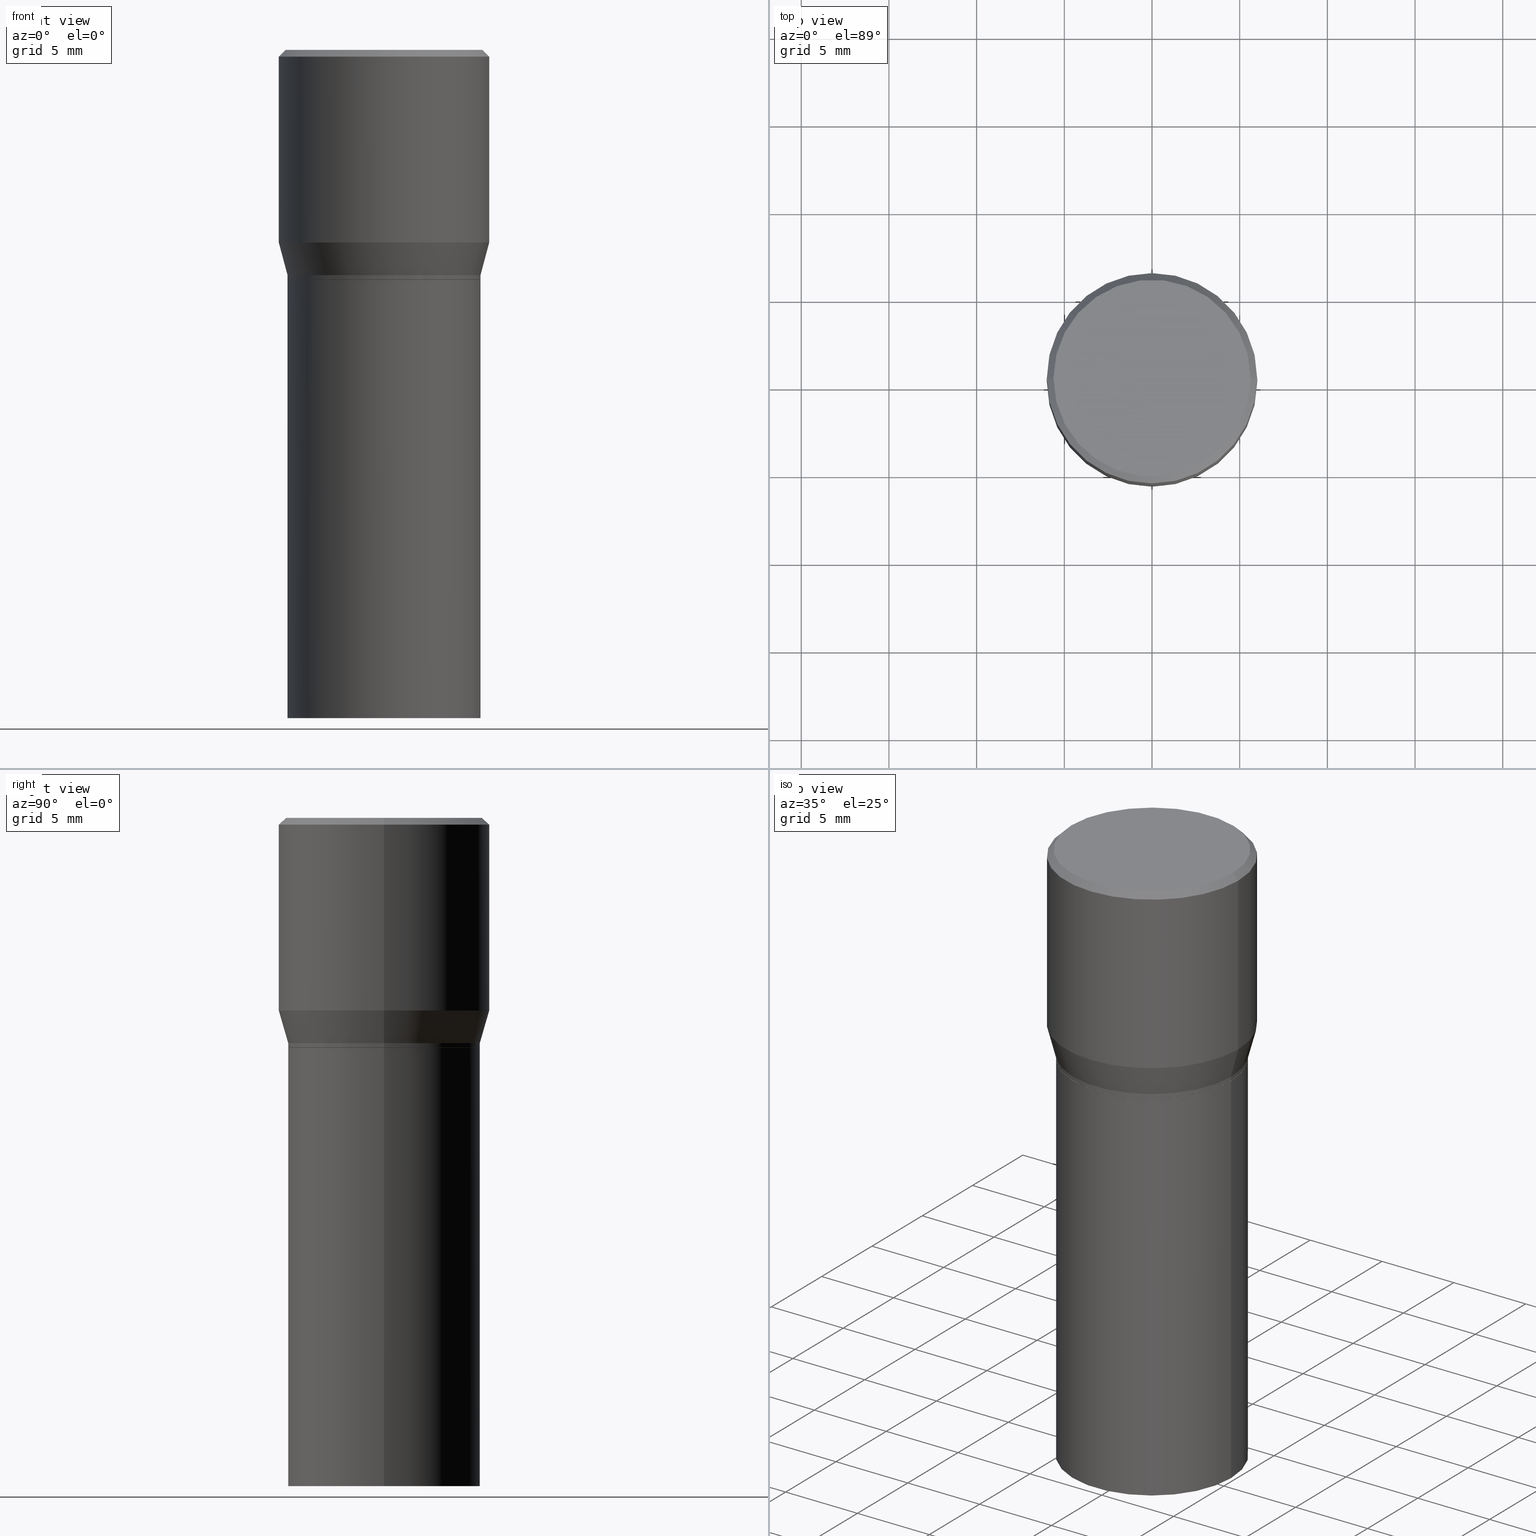
[diagram: canonical four-view strip — front | top / right | iso, engineering-drawing reading convention]
A machine part, canonical four-view strip (front | top / right | iso — engineering-drawing reading convention). The complete STEP part file that produces these views, byte-faithful:
ISO-10303-21;
HEADER;
FILE_DESCRIPTION (( 'STEP AP203' ),
    '1' );
FILE_NAME ('48642.STEP',
    '2024-03-12T19:37:21',
    ( '' ),
    ( '' ),
    'SwSTEP 2.0',
    'SolidWorks 2023',
    '' );
FILE_SCHEMA (( 'CONFIG_CONTROL_DESIGN' ));
ENDSEC;

DATA;
#1 = EDGE_CURVE ( 'NONE', #222, #376, #321, .T. ) ;
#2 = CARTESIAN_POINT ( 'NONE',  ( 1.236673575287824021E-29, -1.765642113052979313E-15, -0.5057000000000001494 ) ) ;
#3 = PERSON_AND_ORGANIZATION_ROLE ( 'creator' ) ;
#4 = DIRECTION ( 'NONE',  ( 1.000000000000000000, -6.982962677686267499E-15, 0.000000000000000000 ) ) ;
#5 = APPROVAL_ROLE ( '' ) ;
#6 = DIRECTION ( 'NONE',  ( 0.000000000000000000, 0.000000000000000000, 1.000000000000000000 ) ) ;
#7 = CONICAL_SURFACE ( 'NONE', #185, 0.2160500000000000198, 0.7853981633974824739 ) ;
#8 = ADVANCED_FACE ( 'NONE', ( #336 ), #456, .F. ) ;
#9 = DATE_AND_TIME ( #327, #351 ) ;
#10 = APPLICATION_CONTEXT ( 'configuration controlled 3d designs of mechanical parts and assemblies' ) ;
#11 = CARTESIAN_POINT ( 'NONE',  ( -0.2361999999999999933, 1.678301941865356591E-15, -1.161852468318208757E-29 ) ) ;
#12 = CIRCLE ( 'NONE', #280, 0.2361999999999999933 ) ;
#13 = CARTESIAN_POINT ( 'NONE',  ( 0.000000000000000000, 0.000000000000000000, 0.000000000000000000 ) ) ;
#14 = PERSON_AND_ORGANIZATION_ROLE ( 'design_owner' ) ;
#15 = DIRECTION ( 'NONE',  ( 1.000000000000000000, -6.982962677686268288E-15, 0.000000000000000000 ) ) ;
#16 = APPROVAL ( #409, 'UNSPECIFIED' ) ;
#17 = EDGE_LOOP ( 'NONE', ( #418, #430, #248, #424 ) ) ;
#18 = CARTESIAN_POINT ( 'NONE',  ( 0.000000000000000000, 0.000000000000000000, 0.000000000000000000 ) ) ;
#19 = PERSON_AND_ORGANIZATION_ROLE ( 'design_supplier' ) ;
#20 = ADVANCED_FACE ( 'NONE', ( #141 ), #213, .T. ) ;
#21 = CALENDAR_DATE ( 2024, 12, 3 ) ;
#22 = LINE ( 'NONE', #124, #61 ) ;
#23 = CLOSED_SHELL ( 'NONE', ( #449, #114, #429, #74 ) ) ;
#24 = CIRCLE ( 'NONE', #228, 0.2212000000000000077 ) ;
#25 = LINE ( 'NONE', #410, #366 ) ;
#26 = AXIS2_PLACEMENT_3D ( 'NONE', #392, #107, #385 ) ;
#27 = LOCAL_TIME ( 15, 37, 21.00000000000000000, #278 ) ;
#28 = PRODUCT_RELATED_PRODUCT_CATEGORY ( 'detail', '', ( #354 ) ) ;
#29 = ORIENTED_EDGE ( 'NONE', *, *, #118, .T. ) ;
#30 = DIRECTION ( 'NONE',  ( -2.438088387897960049E-29, 3.491481338843145188E-15, 1.000000000000000000 ) ) ;
#31 = DIRECTION ( 'NONE',  ( 2.438088387897960049E-29, -3.491481338843145188E-15, -1.000000000000000000 ) ) ;
#32 = CONICAL_SURFACE ( 'NONE', #77, 0.2361999999999999933, 0.7853981633974459475 ) ;
#33 = DIRECTION ( 'NONE',  ( -2.445468806185136597E-29, 3.491481338843145583E-15, 1.000000000000000000 ) ) ;
#34 = EDGE_CURVE ( 'NONE', #376, #209, #140, .T. ) ;
#35 = DIMENSIONAL_EXPONENTS ( 1.000000000000000000, 0.000000000000000000, 0.000000000000000000, 0.000000000000000000, 0.000000000000000000, 0.000000000000000000, 0.000000000000000000 ) ;
#36 = CARTESIAN_POINT ( 'NONE',  ( 0.2160500000000000198, -3.309226012955529172E-15, -0.5157000000000001583 ) ) ;
#37 = FACE_OUTER_BOUND ( 'NONE', #150, .T. ) ;
#38 = ORIENTED_EDGE ( 'NONE', *, *, #56, .F. ) ;
#39 = DIRECTION ( 'NONE',  ( 2.445468806185136597E-29, -3.491481338843145583E-15, -1.000000000000000000 ) ) ;
#40 = DIRECTION ( 'NONE',  ( -2.445468806185136597E-29, 3.491481338843145583E-15, 1.000000000000000000 ) ) ;
#41 = CARTESIAN_POINT ( 'NONE',  ( 1.236673575287824021E-29, -1.765642113052979313E-15, -0.5057000000000001494 ) ) ;
#42 = DIRECTION ( 'NONE',  ( -2.445468806185136597E-29, 3.491481338843145583E-15, 1.000000000000000000 ) ) ;
#43 = APPROVAL ( #341, 'UNSPECIFIED' ) ;
#44 = CARTESIAN_POINT ( 'NONE',  ( -0.2165500000000000203, -1.980209173064567670E-15, -1.500000000000000222 ) ) ;
#45 = LINE ( 'NONE', #168, #415 ) ;
#46 = PERSON_AND_ORGANIZATION ( #353, #343 ) ;
#47 = VERTEX_POINT ( 'NONE', #94 ) ;
#48 = APPLICATION_PROTOCOL_DEFINITION ( 'international standard', 'config_control_design', 1994, #10 ) ;
#49 = VECTOR ( 'NONE', #387, 39.37007874015748143 ) ;
#50 = AXIS2_PLACEMENT_3D ( 'NONE', #18, #154, #441 ) ;
#51 = DIRECTION ( 'NONE',  ( -2.445468806185136597E-29, 3.491481338843145583E-15, 1.000000000000000000 ) ) ;
#52 = COORDINATED_UNIVERSAL_TIME_OFFSET ( 5, 0, .BEHIND. ) ;
#53 = LINE ( 'NONE', #443, #122 ) ;
#54 = VERTEX_POINT ( 'NONE', #231 ) ;
#55 = PERSON_AND_ORGANIZATION_ROLE ( 'classification_officer' ) ;
#56 = EDGE_CURVE ( 'NONE', #176, #242, #286, .T. ) ;
#57 = CARTESIAN_POINT ( 'NONE',  ( 1.057335613469222325E-29, -1.509595033060739709E-15, -0.4323652016312719004 ) ) ;
#58 = COORDINATED_UNIVERSAL_TIME_OFFSET ( 5, 0, .BEHIND. ) ;
#59 = CARTESIAN_POINT ( 'NONE',  ( 1.259905528946582905E-29, -1.798811185771989458E-15, -0.5152000000000002133 ) ) ;
#60 = AXIS2_PLACEMENT_3D ( 'NONE', #344, #277, #157 ) ;
#61 = VECTOR ( 'NONE', #423, 39.37007874015748143 ) ;
#62 = ORIENTED_EDGE ( 'NONE', *, *, #337, .T. ) ;
#63 = APPROVAL ( #388, 'UNSPECIFIED' ) ;
#64 = ORIENTED_EDGE ( 'NONE', *, *, #337, .F. ) ;
#65 = AXIS2_PLACEMENT_3D ( 'NONE', #359, #330, #4 ) ;
#66 = VECTOR ( 'NONE', #446, 39.37007874015748854 ) ;
#67 = VERTEX_POINT ( 'NONE', #70 ) ;
#68 = EDGE_CURVE ( 'NONE', #376, #230, #102, .T. ) ;
#69 = ORIENTED_EDGE ( 'NONE', *, *, #301, .T. ) ;
#70 = CARTESIAN_POINT ( 'NONE',  ( -0.2160500000000000198, -2.627801186576033655E-16, -0.5157000000000001583 ) ) ;
#71 = DIRECTION ( 'NONE',  ( 0.7071067811865459074, -7.319954787623251312E-15, -0.7071067811865492381 ) ) ;
#72 = CARTESIAN_POINT ( 'NONE',  ( 0.2165500000000000203, -3.312717494294371784E-15, -0.5157000000000001583 ) ) ;
#73 = ORIENTED_EDGE ( 'NONE', *, *, #425, .F. ) ;
#74 = ADVANCED_FACE ( 'NONE', ( #37 ), #171, .F. ) ;
#75 = CARTESIAN_POINT ( 'NONE',  ( 0.2361999999999999933, -3.158970817530236235E-15, -0.4323652016312719004 ) ) ;
#76 = DIRECTION ( 'NONE',  ( 1.000000000000000000, -6.982962677686266711E-15, 4.876176775795935793E-29 ) ) ;
#77 = AXIS2_PLACEMENT_3D ( 'NONE', #238, #39, #200 ) ;
#78 = PLANE ( 'NONE',  #92 ) ;
#79 = EDGE_LOOP ( 'NONE', ( #180, #454 ) ) ;
#80 = DIRECTION ( 'NONE',  ( -2.445468806185136597E-29, 3.491481338843145583E-15, 1.000000000000000000 ) ) ;
#81 = ORIENTED_EDGE ( 'NONE', *, *, #289, .T. ) ;
#82 = PERSON_AND_ORGANIZATION ( #353, #343 ) ;
#83 = ORIENTED_EDGE ( 'NONE', *, *, #203, .F. ) ;
#84 = CALENDAR_DATE ( 2024, 12, 3 ) ;
#85 = DIRECTION ( 'NONE',  ( 1.000000000000000000, -6.982962677686266711E-15, 0.000000000000000000 ) ) ;
#86 = DIRECTION ( 'NONE',  ( -2.445468806185136597E-29, 3.491481338843145583E-15, 1.000000000000000000 ) ) ;
#87 = ADVANCED_FACE ( 'NONE', ( #346 ), #306, .T. ) ;
#88 = CC_DESIGN_APPROVAL ( #43, ( #142 ) ) ;
#89 = EDGE_LOOP ( 'NONE', ( #272, #284, #38, #221 ) ) ;
#90 = EDGE_CURVE ( 'NONE', #209, #376, #309, .T. ) ;
#91 = ORIENTED_EDGE ( 'NONE', *, *, #160, .F. ) ;
#92 = AXIS2_PLACEMENT_3D ( 'NONE', #260, #31, #100 ) ;
#93 = AXIS2_PLACEMENT_3D ( 'NONE', #41, #241, #85 ) ;
#94 = CARTESIAN_POINT ( 'NONE',  ( -0.2212000000000000077, 1.570817454345525709E-15, 4.701447564591266586E-17 ) ) ;
#95 = ORIENTED_EDGE ( 'NONE', *, *, #289, .F. ) ;
#96 = LINE ( 'NONE', #104, #196 ) ;
#97 = FACE_OUTER_BOUND ( 'NONE', #169, .T. ) ;
#98 = DIRECTION ( 'NONE',  ( -2.445468806185136597E-29, 3.491481338843145583E-15, 1.000000000000000000 ) ) ;
#99 = EDGE_LOOP ( 'NONE', ( #188, #261 ) ) ;
#100 = DIRECTION ( 'NONE',  ( -1.000000000000000000, 6.982962677686265922E-15, -4.876176775795935793E-29 ) ) ;
#101 = CIRCLE ( 'NONE', #65, 0.2160500000000000198 ) ;
#102 = LINE ( 'NONE', #198, #49 ) ;
#103 = APPROVAL_PERSON_ORGANIZATION ( #450, #63, #130 ) ;
#104 = CARTESIAN_POINT ( 'NONE',  ( -0.2165500000000000203, 1.538680294288497096E-15, -1.065195393794699923E-29 ) ) ;
#105 = DIRECTION ( 'NONE',  ( -2.445468806185136597E-29, 3.491481338843145583E-15, 1.000000000000000000 ) ) ;
#106 = CARTESIAN_POINT ( 'NONE',  ( 1.261128263349675426E-29, -1.800556926441410962E-15, -0.5157000000000001583 ) ) ;
#107 = DIRECTION ( 'NONE',  ( -2.445468806185136597E-29, 3.491481338843145583E-15, 1.000000000000000000 ) ) ;
#108 = CARTESIAN_POINT ( 'NONE',  ( 1.236673575287824021E-29, -1.765642113052979313E-15, -0.5057000000000001494 ) ) ;
#109 = ORIENTED_EDGE ( 'NONE', *, *, #165, .T. ) ;
#110 = FACE_OUTER_BOUND ( 'NONE', #420, .T. ) ;
#111 = VECTOR ( 'NONE', #382, 39.37007874015748854 ) ;
#112 = VECTOR ( 'NONE', #378, 39.37007874015748143 ) ;
#113 = LENGTH_MEASURE_WITH_UNIT ( LENGTH_MEASURE( 0.02539999999999999897 ), #116 );
#114 = ADVANCED_FACE ( 'NONE', ( #223 ), #411, .F. ) ;
#115 = ORIENTED_EDGE ( 'NONE', *, *, #224, .F. ) ;
#116 =( LENGTH_UNIT ( ) NAMED_UNIT ( * ) SI_UNIT ( $, .METRE. ) );
#117 = FACE_OUTER_BOUND ( 'NONE', #79, .T. ) ;
#118 = EDGE_CURVE ( 'NONE', #230, #176, #349, .T. ) ;
#119 = CIRCLE ( 'NONE', #173, 0.2165500000000000203 ) ;
#120 = DATE_AND_TIME ( #442, #465 ) ;
#121 = DIRECTION ( 'NONE',  ( 1.000000000000000000, -6.982962677686264344E-15, 0.000000000000000000 ) ) ;
#122 = VECTOR ( 'NONE', #447, 39.37007874015748143 ) ;
#123 = CC_DESIGN_PERSON_AND_ORGANIZATION_ASSIGNMENT ( #46, #14, ( #354 ) ) ;
#124 = CARTESIAN_POINT ( 'NONE',  ( 0.2361999999999999933, -1.649375784469496131E-15, 1.151752954443000088E-29 ) ) ;
#125 = EDGE_CURVE ( 'NONE', #253, #426, #172, .T. ) ;
#126 = ORIENTED_EDGE ( 'NONE', *, *, #252, .F. ) ;
#127 = AXIS2_PLACEMENT_3D ( 'NONE', #57, #215, #15 ) ;
#128 = ORIENTED_EDGE ( 'NONE', *, *, #125, .T. ) ;
#129 = ORIENTED_EDGE ( 'NONE', *, *, #308, .T. ) ;
#130 = APPROVAL_ROLE ( '' ) ;
#131 = EDGE_LOOP ( 'NONE', ( #91, #95 ) ) ;
#132 = CIRCLE ( 'NONE', #220, 0.2165500000000000203 ) ;
#133 = CC_DESIGN_APPROVAL ( #63, ( #194 ) ) ;
#134 = ORIENTED_EDGE ( 'NONE', *, *, #416, .T. ) ;
#135 = CARTESIAN_POINT ( 'NONE',  ( 1.236673575287824021E-29, -1.765642113052979313E-15, -0.5057000000000001494 ) ) ;
#136 = DIRECTION ( 'NONE',  ( 1.000000000000000000, -6.982962677686266711E-15, 0.000000000000000000 ) ) ;
#137 = DIRECTION ( 'NONE',  ( 1.000000000000000000, -6.982962677686266711E-15, 0.000000000000000000 ) ) ;
#138 = EDGE_CURVE ( 'NONE', #428, #358, #96, .T. ) ;
#139 = FACE_OUTER_BOUND ( 'NONE', #383, .T. ) ;
#140 = CIRCLE ( 'NONE', #26, 0.2165500000000000203 ) ;
#141 = FACE_OUTER_BOUND ( 'NONE', #17, .T. ) ;
#142 = PRODUCT_DEFINITION_FORMATION_WITH_SPECIFIED_SOURCE ( 'ANY', '', #354, .NOT_KNOWN. ) ;
#143 = FACE_OUTER_BOUND ( 'NONE', #302, .T. ) ;
#144 = FACE_OUTER_BOUND ( 'NONE', #234, .T. ) ;
#145 = EDGE_CURVE ( 'NONE', #317, #426, #162, .T. ) ;
#146 = CARTESIAN_POINT ( 'NONE',  ( 3.668203209277704895E-29, -5.237222008264718177E-15, -1.500000000000000222 ) ) ;
#147 = CONICAL_SURFACE ( 'NONE', #237, 0.2165500000000000480, 0.2617993877991494078 ) ;
#148 = DIRECTION ( 'NONE',  ( -2.445468806185136597E-29, 3.491481338843145583E-15, 1.000000000000000000 ) ) ;
#149 = DATE_AND_TIME ( #21, #263 ) ;
#150 = EDGE_LOOP ( 'NONE', ( #134, #229 ) ) ;
#151 = APPLICATION_PROTOCOL_DEFINITION ( 'international standard', 'config_control_design', 1994, #398 ) ;
#152 = DATE_AND_TIME ( #84, #163 ) ;
#153 = ADVANCED_FACE ( 'NONE', ( #393 ), #32, .T. ) ;
#154 = DIRECTION ( 'NONE',  ( -2.445468806185136597E-29, 3.491481338843145583E-15, 1.000000000000000000 ) ) ;
#155 = AXIS2_PLACEMENT_3D ( 'NONE', #13, #51, #333 ) ;
#156 = APPROVAL_DATE_TIME ( #149, #16 ) ;
#157 = DIRECTION ( 'NONE',  ( 1.000000000000000000, -6.982962677686265922E-15, 4.876176775795935793E-29 ) ) ;
#158 = AXIS2_PLACEMENT_3D ( 'NONE', #191, #166, #292 ) ;
#159 = ORIENTED_EDGE ( 'NONE', *, *, #416, .F. ) ;
#160 = EDGE_CURVE ( 'NONE', #222, #67, #101, .T. ) ;
#161 = DIRECTION ( 'NONE',  ( 1.000000000000000000, -6.982962677686266711E-15, 0.000000000000000000 ) ) ;
#162 = CIRCLE ( 'NONE', #262, 0.2361999999999999933 ) ;
#163 = LOCAL_TIME ( 15, 37, 21.00000000000000000, #58 ) ;
#164 = FACE_OUTER_BOUND ( 'NONE', #293, .T. ) ;
#165 = EDGE_CURVE ( 'NONE', #209, #54, #403, .T. ) ;
#166 = DIRECTION ( 'NONE',  ( -2.445468806185136597E-29, 3.491481338843145583E-15, 1.000000000000000000 ) ) ;
#167 = EDGE_CURVE ( 'NONE', #448, #428, #119, .T. ) ;
#168 = CARTESIAN_POINT ( 'NONE',  ( -0.2165500000000000480, -2.269618187644819696E-16, -0.5057000000000001494 ) ) ;
#169 = EDGE_LOOP ( 'NONE', ( #281, #276, #69, #83 ) ) ;
#170 = ORIENTED_EDGE ( 'NONE', *, *, #177, .F. ) ;
#171 = PLANE ( 'NONE',  #192 ) ;
#172 = LINE ( 'NONE', #312, #329 ) ;
#173 = AXIS2_PLACEMENT_3D ( 'NONE', #146, #368, #362 ) ;
#174 = EDGE_LOOP ( 'NONE', ( #332, #417, #73, #184 ) ) ;
#175 = CARTESIAN_POINT ( 'NONE',  ( -0.2361999999999999933, 1.687069088046168326E-16, -0.4323652016312719004 ) ) ;
#176 = VERTEX_POINT ( 'NONE', #75 ) ;
#177 = EDGE_CURVE ( 'NONE', #47, #253, #225, .T. ) ;
#178 = MECHANICAL_CONTEXT ( 'NONE', #10, 'mechanical' ) ;
#179 = APPROVAL_DATE_TIME ( #152, #43 ) ;
#180 = ORIENTED_EDGE ( 'NONE', *, *, #177, .T. ) ;
#181 = COORDINATED_UNIVERSAL_TIME_OFFSET ( 5, 0, .BEHIND. ) ;
#182 = CARTESIAN_POINT ( 'NONE',  ( 0.2165500000000000203, -3.310971753624950675E-15, -0.5152000000000002133 ) ) ;
#183 = ADVANCED_FACE ( 'NONE', ( #144 ), #247, .T. ) ;
#184 = ORIENTED_EDGE ( 'NONE', *, *, #390, .F. ) ;
#185 = AXIS2_PLACEMENT_3D ( 'NONE', #458, #295, #282 ) ;
#186 = AXIS2_PLACEMENT_3D ( 'NONE', #334, #6, #249 ) ;
#187 = DATE_TIME_ROLE ( 'creation_date' ) ;
#188 = ORIENTED_EDGE ( 'NONE', *, *, #167, .F. ) ;
#189 = ADVANCED_FACE ( 'NONE', ( #117 ), #78, .F. ) ;
#190 = CC_DESIGN_PERSON_AND_ORGANIZATION_ASSIGNMENT ( #244, #3, ( #194 ) ) ;
#191 = CARTESIAN_POINT ( 'NONE',  ( 1.261128263349675426E-29, -1.800556926441410962E-15, -0.5157000000000001583 ) ) ;
#192 = AXIS2_PLACEMENT_3D ( 'NONE', #319, #285, #270 ) ;
#193 = ORIENTED_EDGE ( 'NONE', *, *, #224, .T. ) ;
#194 = PRODUCT_DEFINITION ( 'UNKNOWN', '', #142, #315 ) ;
#195 = CARTESIAN_POINT ( 'NONE',  ( 1.261128263349675426E-29, -1.800556926441410962E-15, -0.5157000000000001583 ) ) ;
#196 = VECTOR ( 'NONE', #232, 39.37007874015748143 ) ;
#197 = ORIENTED_EDGE ( 'NONE', *, *, #167, .T. ) ;
#198 = CARTESIAN_POINT ( 'NONE',  ( 0.2165500000000000480, -1.512160567852961414E-15, 1.055936080798610176E-29 ) ) ;
#199 = ORIENTED_EDGE ( 'NONE', *, *, #348, .F. ) ;
#200 = DIRECTION ( 'NONE',  ( -1.000000000000000000, 6.982962677686266711E-15, 0.000000000000000000 ) ) ;
#201 = CARTESIAN_POINT ( 'NONE',  ( 0.2361999999999999933, -1.701748004552143407E-15, -0.01499999999999999944 ) ) ;
#202 = CARTESIAN_POINT ( 'NONE',  ( 0.2165500000000000480, -3.277802680905940530E-15, -0.5057000000000001494 ) ) ;
#203 = EDGE_CURVE ( 'NONE', #358, #436, #132, .T. ) ;
#204 = CIRCLE ( 'NONE', #127, 0.2361999999999999933 ) ;
#205 = CARTESIAN_POINT ( 'NONE',  ( 0.000000000000000000, 0.000000000000000000, 0.000000000000000000 ) ) ;
#206 = ORIENTED_EDGE ( 'NONE', *, *, #374, .F. ) ;
#207 = LINE ( 'NONE', #218, #66 ) ;
#208 = ADVANCED_FACE ( 'NONE', ( #164 ), #7, .T. ) ;
#209 = VERTEX_POINT ( 'NONE', #357 ) ;
#210 =( CONVERSION_BASED_UNIT ( 'INCH', #113 ) LENGTH_UNIT ( ) NAMED_UNIT ( #35 ) );
#211 = DIRECTION ( 'NONE',  ( -2.445468806185136597E-29, 3.491481338843145583E-15, 1.000000000000000000 ) ) ;
#212 = ORIENTED_EDGE ( 'NONE', *, *, #165, .F. ) ;
#213 = CONICAL_SURFACE ( 'NONE', #384, 0.2160500000000000198, 0.7853981633974824739 ) ;
#214 = CARTESIAN_POINT ( 'NONE',  ( 0.2160500000000000198, -3.309226012955529172E-15, -0.5157000000000001583 ) ) ;
#215 = DIRECTION ( 'NONE',  ( -2.445468806185136597E-29, 3.491481338843145583E-15, 1.000000000000000000 ) ) ;
#216 = EDGE_LOOP ( 'NONE', ( #219, #109, #369, #268 ) ) ;
#217 = PERSON_AND_ORGANIZATION ( #353, #343 ) ;
#218 = CARTESIAN_POINT ( 'NONE',  ( -0.2160500000000000198, -2.654293458317144186E-16, -0.5157000000000001583 ) ) ;
#219 = ORIENTED_EDGE ( 'NONE', *, *, #34, .T. ) ;
#220 = AXIS2_PLACEMENT_3D ( 'NONE', #195, #80, #396 ) ;
#221 = ORIENTED_EDGE ( 'NONE', *, *, #118, .F. ) ;
#222 = VERTEX_POINT ( 'NONE', #36 ) ;
#223 = FACE_OUTER_BOUND ( 'NONE', #99, .T. ) ;
#224 = EDGE_CURVE ( 'NONE', #54, #230, #437, .T. ) ;
#225 = CIRCLE ( 'NONE', #342, 0.2212000000000000077 ) ;
#226 = PRODUCT_DEFINITION_SHAPE ( 'NONE', 'NONE',  #194 ) ;
#227 = CC_DESIGN_PERSON_AND_ORGANIZATION_ASSIGNMENT ( #82, #335, ( #142 ) ) ;
#228 = AXIS2_PLACEMENT_3D ( 'NONE', #256, #86, #298 ) ;
#229 = ORIENTED_EDGE ( 'NONE', *, *, #203, .T. ) ;
#230 = VERTEX_POINT ( 'NONE', #202 ) ;
#231 = CARTESIAN_POINT ( 'NONE',  ( -0.2165500000000000480, -2.912745497993258696E-17, -0.5057000000000001494 ) ) ;
#232 = DIRECTION ( 'NONE',  ( -2.445468806185136877E-29, 3.491481338843145188E-15, 1.000000000000000000 ) ) ;
#233 = EDGE_CURVE ( 'NONE', #230, #54, #455, .T. ) ;
#234 = EDGE_LOOP ( 'NONE', ( #212, #338, #371, #115 ) ) ;
#235 = DIRECTION ( 'NONE',  ( 1.000000000000000000, -6.982962677686268288E-15, 0.000000000000000000 ) ) ;
#236 = CARTESIAN_POINT ( 'NONE',  ( 3.668203209277705088E-31, -5.237222008264718399E-17, -0.01499999999999999944 ) ) ;
#237 = AXIS2_PLACEMENT_3D ( 'NONE', #108, #320, #461 ) ;
#238 = CARTESIAN_POINT ( 'NONE',  ( 3.668203209277705088E-31, -5.237222008264718399E-17, -0.01499999999999999944 ) ) ;
#239 = DIRECTION ( 'NONE',  ( -2.445468806185136597E-29, 3.491481338843145583E-15, 1.000000000000000000 ) ) ;
#240 = ADVANCED_FACE ( 'NONE', ( #110 ), #243, .T. ) ;
#241 = DIRECTION ( 'NONE',  ( -2.445468806185136597E-29, 3.491481338843145583E-15, 1.000000000000000000 ) ) ;
#242 = VERTEX_POINT ( 'NONE', #175 ) ;
#243 = CYLINDRICAL_SURFACE ( 'NONE', #273, 0.2361999999999999933 ) ;
#244 = PERSON_AND_ORGANIZATION ( #353, #343 ) ;
#245 = CARTESIAN_POINT ( 'NONE',  ( 0.2212000000000000077, -1.595182002131672613E-15, 4.701447564593453826E-17 ) ) ;
#246 = CC_DESIGN_PERSON_AND_ORGANIZATION_ASSIGNMENT ( #269, #55, ( #274 ) ) ;
#247 = CYLINDRICAL_SURFACE ( 'NONE', #155, 0.2165500000000000480 ) ;
#248 = ORIENTED_EDGE ( 'NONE', *, *, #34, .F. ) ;
#249 = DIRECTION ( 'NONE',  ( 1.000000000000000000, 0.000000000000000000, 0.000000000000000000 ) ) ;
#250 = DATE_TIME_ROLE ( 'classification_date' ) ;
#251 = MANIFOLD_SOLID_BREP ( 'Body-Move/Copy2[2]', #464 ) ;
#252 = EDGE_CURVE ( 'NONE', #54, #242, #45, .T. ) ;
#253 = VERTEX_POINT ( 'NONE', #245 ) ;
#254 = DIRECTION ( 'NONE',  ( 1.000000000000000000, -6.982962677686266711E-15, 4.876176775795935793E-29 ) ) ;
#255 = DIRECTION ( 'NONE',  ( 1.000000000000000000, -6.982962677686266711E-15, 4.876176775795936353E-29 ) ) ;
#256 = CARTESIAN_POINT ( 'NONE',  ( -1.149724336312568861E-45, 1.641501643732376549E-31, 4.701447564592356200E-17 ) ) ;
#257 = CARTESIAN_POINT ( 'NONE',  ( -1.149724336312568861E-45, 1.641501643732376549E-31, 4.701447564592356200E-17 ) ) ;
#258 = ORIENTED_EDGE ( 'NONE', *, *, #125, .F. ) ;
#259 =( NAMED_UNIT ( * ) PLANE_ANGLE_UNIT ( ) SI_UNIT ( $, .RADIAN. ) );
#260 = CARTESIAN_POINT ( 'NONE',  ( 1.544631344304202170E-15, 0.2212000000000000077, -7.488084343291421542E-16 ) ) ;
#261 = ORIENTED_EDGE ( 'NONE', *, *, #326, .F. ) ;
#262 = AXIS2_PLACEMENT_3D ( 'NONE', #389, #460, #136 ) ;
#263 = LOCAL_TIME ( 15, 37, 21.00000000000000000, #181 ) ;
#264 = MANIFOLD_SOLID_BREP ( 'Body-Move/Copy2[1]', #23 ) ;
#265 = DIRECTION ( 'NONE',  ( -2.445468806185136597E-29, 3.491481338843145583E-15, 1.000000000000000000 ) ) ;
#266 = COORDINATED_UNIVERSAL_TIME_OFFSET ( 5, 0, .BEHIND. ) ;
#267 = DIRECTION ( 'NONE',  ( -0.7071067811865459074, 2.468850131082239706E-15, -0.7071067811865492381 ) ) ;
#268 = ORIENTED_EDGE ( 'NONE', *, *, #68, .F. ) ;
#269 = PERSON_AND_ORGANIZATION ( #353, #343 ) ;
#270 = DIRECTION ( 'NONE',  ( -1.000000000000000000, 6.982962677686265922E-15, -4.876176775795935793E-29 ) ) ;
#271 = DIRECTION ( 'NONE',  ( 0.7071067811865715536, -2.468850131082509496E-15, 0.7071067811865232589 ) ) ;
#272 = ORIENTED_EDGE ( 'NONE', *, *, #233, .T. ) ;
#273 = AXIS2_PLACEMENT_3D ( 'NONE', #205, #325, #255 ) ;
#274 = SECURITY_CLASSIFICATION ( '', '', #300 ) ;
#275 = ADVANCED_FACE ( 'NONE', ( #139 ), #147, .T. ) ;
#276 = ORIENTED_EDGE ( 'NONE', *, *, #326, .T. ) ;
#277 = DIRECTION ( 'NONE',  ( -2.438088387897960049E-29, 3.491481338843145188E-15, 1.000000000000000000 ) ) ;
#278 = COORDINATED_UNIVERSAL_TIME_OFFSET ( 5, 0, .BEHIND. ) ;
#279 = AXIS2_PLACEMENT_3D ( 'NONE', #463, #30, #433 ) ;
#280 = AXIS2_PLACEMENT_3D ( 'NONE', #434, #105, #367 ) ;
#281 = ORIENTED_EDGE ( 'NONE', *, *, #138, .F. ) ;
#282 = DIRECTION ( 'NONE',  ( 1.000000000000000000, -6.982962677686267499E-15, 0.000000000000000000 ) ) ;
#283 = ORIENTED_EDGE ( 'NONE', *, *, #90, .F. ) ;
#284 = ORIENTED_EDGE ( 'NONE', *, *, #252, .T. ) ;
#285 = DIRECTION ( 'NONE',  ( 2.438088387897960049E-29, -3.491481338843145188E-15, -1.000000000000000000 ) ) ;
#286 = CIRCLE ( 'NONE', #350, 0.2361999999999999933 ) ;
#287 = ADVANCED_FACE ( 'NONE', ( #143 ), #310, .T. ) ;
#288 = CIRCLE ( 'NONE', #445, 0.2160500000000000198 ) ;
#289 = EDGE_CURVE ( 'NONE', #67, #222, #288, .T. ) ;
#290 = CARTESIAN_POINT ( 'NONE',  ( -0.2165500000000000480, 1.538680294288497294E-15, -1.065195393794700063E-29 ) ) ;
#291 = CARTESIAN_POINT ( 'NONE',  ( 0.000000000000000000, 0.000000000000000000, 0.000000000000000000 ) ) ;
#292 = DIRECTION ( 'NONE',  ( 1.000000000000000000, -6.982962677686265133E-15, 0.000000000000000000 ) ) ;
#293 = EDGE_LOOP ( 'NONE', ( #199, #81, #405, #283 ) ) ;
#294 = FACE_OUTER_BOUND ( 'NONE', #419, .T. ) ;
#295 = DIRECTION ( 'NONE',  ( -2.445468806185136597E-29, 3.491481338843145583E-15, 1.000000000000000000 ) ) ;
#296 = ADVANCED_FACE ( 'NONE', ( #361 ), #331, .T. ) ;
#297 = APPROVAL_ROLE ( '' ) ;
#298 = DIRECTION ( 'NONE',  ( 1.000000000000000000, -6.982962677686267499E-15, 4.877828720335458505E-29 ) ) ;
#299 = CARTESIAN_POINT ( 'NONE',  ( 0.000000000000000000, 0.000000000000000000, 0.000000000000000000 ) ) ;
#300 = SECURITY_CLASSIFICATION_LEVEL ( 'unclassified' ) ;
#301 = EDGE_CURVE ( 'NONE', #448, #436, #53, .T. ) ;
#302 = EDGE_LOOP ( 'NONE', ( #258, #170, #62, #408 ) ) ;
#303 = CIRCLE ( 'NONE', #407, 0.2165500000000000203 ) ;
#304 = EDGE_CURVE ( 'NONE', #253, #47, #24, .T. ) ;
#305 = CARTESIAN_POINT ( 'NONE',  ( 0.2165500000000000480, -3.277802680905940530E-15, -0.5057000000000001494 ) ) ;
#306 = CYLINDRICAL_SURFACE ( 'NONE', #364, 0.2165500000000000480 ) ;
#307 = ORIENTED_EDGE ( 'NONE', *, *, #145, .F. ) ;
#308 = EDGE_CURVE ( 'NONE', #242, #176, #204, .T. ) ;
#309 = CIRCLE ( 'NONE', #380, 0.2165500000000000203 ) ;
#310 = CONICAL_SURFACE ( 'NONE', #356, 0.2361999999999999933, 0.7853981633974459475 ) ;
#311 = DIRECTION ( 'NONE',  ( 1.000000000000000000, -6.982962677686267499E-15, 0.000000000000000000 ) ) ;
#312 = CARTESIAN_POINT ( 'NONE',  ( 0.2361999999999999933, -1.672821847156282947E-15, -0.01499999999999999944 ) ) ;
#313 = AXIS2_PLACEMENT_3D ( 'NONE', #135, #265, #339 ) ;
#314 = CARTESIAN_POINT ( 'NONE',  ( 1.261128263349675426E-29, -1.800556926441410962E-15, -0.5157000000000001583 ) ) ;
#315 = DESIGN_CONTEXT ( 'detailed design', #398, 'design' ) ;
#316 = DIRECTION ( 'NONE',  ( -0.2588190451025206840, 5.211531920934545520E-15, 0.9659258262890682012 ) ) ;
#317 = VERTEX_POINT ( 'NONE', #413 ) ;
#318 = ORIENTED_EDGE ( 'NONE', *, *, #390, .T. ) ;
#319 = CARTESIAN_POINT ( 'NONE',  ( 1.512160567852973444E-15, 0.2165499999999981884, -0.5157000000000009354 ) ) ;
#320 = DIRECTION ( 'NONE',  ( -2.445468806185136597E-29, 3.491481338843145583E-15, 1.000000000000000000 ) ) ;
#321 = LINE ( 'NONE', #214, #431 ) ;
#322 = VECTOR ( 'NONE', #440, 39.37007874015748143 ) ;
#323 = CC_DESIGN_SECURITY_CLASSIFICATION ( #274, ( #142 ) ) ;
#324 = CARTESIAN_POINT ( 'NONE',  ( 0.2165500000000000203, -6.749382576117678999E-15, -1.500000000000000222 ) ) ;
#325 = DIRECTION ( 'NONE',  ( -2.445468806185136597E-29, 3.491481338843145583E-15, 1.000000000000000000 ) ) ;
#326 = EDGE_CURVE ( 'NONE', #428, #448, #303, .T. ) ;
#327 = CALENDAR_DATE ( 2024, 12, 3 ) ;
#328 = LINE ( 'NONE', #11, #112 ) ;
#329 = VECTOR ( 'NONE', #71, 39.37007874015748143 ) ;
#330 = DIRECTION ( 'NONE',  ( -2.445468806185136597E-29, 3.491481338843145583E-15, 1.000000000000000000 ) ) ;
#331 = CONICAL_SURFACE ( 'NONE', #93, 0.2165500000000000480, 0.2617993877991494078 ) ;
#332 = ORIENTED_EDGE ( 'NONE', *, *, #56, .T. ) ;
#333 = DIRECTION ( 'NONE',  ( 1.000000000000000000, -6.982962677686266711E-15, 4.876176775795935793E-29 ) ) ;
#334 = CARTESIAN_POINT ( 'NONE',  ( 0.000000000000000000, 0.000000000000000000, 0.000000000000000000 ) ) ;
#335 = PERSON_AND_ORGANIZATION_ROLE ( 'creator' ) ;
#336 = FACE_OUTER_BOUND ( 'NONE', #131, .T. ) ;
#337 = EDGE_CURVE ( 'NONE', #47, #317, #25, .T. ) ;
#338 = ORIENTED_EDGE ( 'NONE', *, *, #90, .T. ) ;
#339 = DIRECTION ( 'NONE',  ( 1.000000000000000000, -6.982962677686266711E-15, 0.000000000000000000 ) ) ;
#340 = UNCERTAINTY_MEASURE_WITH_UNIT (LENGTH_MEASURE( 1.000000000000000082E-05 ), #210, 'distance_accuracy_value', 'NONE');
#341 = APPROVAL_STATUS ( 'not_yet_approved' ) ;
#342 = AXIS2_PLACEMENT_3D ( 'NONE', #257, #211, #372 ) ;
#343 = ORGANIZATION ( 'UNSPECIFIED', 'UNSPECIFIED', '' ) ;
#344 = CARTESIAN_POINT ( 'NONE',  ( 3.576687321579069994E-29, -5.368277968210015545E-15, -1.500000000000000222 ) ) ;
#345 = DIRECTION ( 'NONE',  ( -2.445468806185136597E-29, 3.491481338843145583E-15, 1.000000000000000000 ) ) ;
#346 = FACE_OUTER_BOUND ( 'NONE', #216, .T. ) ;
#347 = ORIENTED_EDGE ( 'NONE', *, *, #308, .F. ) ;
#348 = EDGE_CURVE ( 'NONE', #67, #209, #207, .T. ) ;
#349 = LINE ( 'NONE', #305, #111 ) ;
#350 = AXIS2_PLACEMENT_3D ( 'NONE', #459, #98, #235 ) ;
#351 = LOCAL_TIME ( 15, 37, 21.00000000000000000, #52 ) ;
#352 = CALENDAR_DATE ( 2024, 12, 3 ) ;
#353 = PERSON ( 'UNSPECIFIED', 'UNSPECIFIED', 'UNSPECIFIED', ('UNSPECIFIED'), ('UNSPECIFIED'), ('UNSPECIFIED') ) ;
#354 = PRODUCT ( '48642', '48642', '', ( #178 ) ) ;
#355 = DIRECTION ( 'NONE',  ( -2.445468806185136597E-29, 3.491481338843145583E-15, 1.000000000000000000 ) ) ;
#356 = AXIS2_PLACEMENT_3D ( 'NONE', #236, #394, #462 ) ;
#357 = CARTESIAN_POINT ( 'NONE',  ( -0.2165500000000000203, -2.601308914834925589E-16, -0.5152000000000002133 ) ) ;
#358 = VERTEX_POINT ( 'NONE', #370 ) ;
#359 = CARTESIAN_POINT ( 'NONE',  ( 1.261128263349675426E-29, -1.800556926441410962E-15, -0.5157000000000001583 ) ) ;
#360 = CARTESIAN_POINT ( 'NONE',  ( 0.000000000000000000, 0.000000000000000000, 0.000000000000000000 ) ) ;
#361 = FACE_OUTER_BOUND ( 'NONE', #89, .T. ) ;
#362 = DIRECTION ( 'NONE',  ( 1.000000000000000000, -6.982962677686264344E-15, 0.000000000000000000 ) ) ;
#363 = DIRECTION ( 'NONE',  ( 1.000000000000000000, -6.982962677686266711E-15, 4.876176775795935793E-29 ) ) ;
#364 = AXIS2_PLACEMENT_3D ( 'NONE', #291, #400, #76 ) ;
#365 = APPROVAL_DATE_TIME ( #466, #63 ) ;
#366 = VECTOR ( 'NONE', #267, 39.37007874015748143 ) ;
#367 = DIRECTION ( 'NONE',  ( 1.000000000000000000, -6.982962677686266711E-15, 0.000000000000000000 ) ) ;
#368 = DIRECTION ( 'NONE',  ( -2.445468806185136597E-29, 3.491481338843145583E-15, 1.000000000000000000 ) ) ;
#369 = ORIENTED_EDGE ( 'NONE', *, *, #233, .F. ) ;
#370 = CARTESIAN_POINT ( 'NONE',  ( -0.2165500000000000203, -1.980209173064567670E-15, -0.5157000000000001583 ) ) ;
#371 = ORIENTED_EDGE ( 'NONE', *, *, #68, .T. ) ;
#372 = DIRECTION ( 'NONE',  ( 1.000000000000000000, -6.982962677686267499E-15, 4.877828720335458505E-29 ) ) ;
#373 = CIRCLE ( 'NONE', #158, 0.2165500000000000203 ) ;
#374 = EDGE_CURVE ( 'NONE', #242, #317, #328, .T. ) ;
#375 = CYLINDRICAL_SURFACE ( 'NONE', #432, 0.2165500000000000203 ) ;
#376 = VERTEX_POINT ( 'NONE', #182 ) ;
#377 = PERSON_AND_ORGANIZATION ( #353, #343 ) ;
#378 = DIRECTION ( 'NONE',  ( -2.445468806185136877E-29, 3.491481338843145188E-15, 1.000000000000000000 ) ) ;
#379 = CC_DESIGN_PERSON_AND_ORGANIZATION_ASSIGNMENT ( #377, #19, ( #142 ) ) ;
#380 = AXIS2_PLACEMENT_3D ( 'NONE', #59, #42, #137 ) ;
#381 = APPROVAL_PERSON_ORGANIZATION ( #217, #43, #5 ) ;
#382 = DIRECTION ( 'NONE',  ( 0.2588190451025206840, 1.565188264969626504E-15, 0.9659258262890682012 ) ) ;
#383 = EDGE_LOOP ( 'NONE', ( #126, #193, #29, #347 ) ) ;
#384 = AXIS2_PLACEMENT_3D ( 'NONE', #314, #33, #311 ) ;
#385 = DIRECTION ( 'NONE',  ( 1.000000000000000000, -6.982962677686266711E-15, 0.000000000000000000 ) ) ;
#386 = ORIENTED_EDGE ( 'NONE', *, *, #425, .T. ) ;
#387 = DIRECTION ( 'NONE',  ( -2.445468806185136877E-29, 3.491481338843145188E-15, 1.000000000000000000 ) ) ;
#388 = APPROVAL_STATUS ( 'not_yet_approved' ) ;
#389 = CARTESIAN_POINT ( 'NONE',  ( 3.668203209277705088E-31, -5.237222008264718399E-17, -0.01499999999999999944 ) ) ;
#390 = EDGE_CURVE ( 'NONE', #176, #426, #22, .T. ) ;
#391 = ORIENTED_EDGE ( 'NONE', *, *, #304, .F. ) ;
#392 = CARTESIAN_POINT ( 'NONE',  ( 1.259905528946582905E-29, -1.798811185771989458E-15, -0.5152000000000002133 ) ) ;
#393 = FACE_OUTER_BOUND ( 'NONE', #435, .T. ) ;
#394 = DIRECTION ( 'NONE',  ( 2.445468806185136597E-29, -3.491481338843145583E-15, -1.000000000000000000 ) ) ;
#395 = ORIENTED_EDGE ( 'NONE', *, *, #138, .T. ) ;
#396 = DIRECTION ( 'NONE',  ( 1.000000000000000000, -6.982962677686265133E-15, 0.000000000000000000 ) ) ;
#397 = DIRECTION ( 'NONE',  ( 1.000000000000000000, -6.982962677686267499E-15, 0.000000000000000000 ) ) ;
#398 = APPLICATION_CONTEXT ( 'configuration controlled 3d designs of mechanical parts and assemblies' ) ;
#399 = ORIENTED_EDGE ( 'NONE', *, *, #301, .F. ) ;
#400 = DIRECTION ( 'NONE',  ( -2.445468806185136597E-29, 3.491481338843145583E-15, 1.000000000000000000 ) ) ;
#401 =( NAMED_UNIT ( * ) SI_UNIT ( $, .STERADIAN. ) SOLID_ANGLE_UNIT ( ) );
#402 = PERSON_AND_ORGANIZATION ( #353, #343 ) ;
#403 = LINE ( 'NONE', #290, #322 ) ;
#404 = CC_DESIGN_DATE_AND_TIME_ASSIGNMENT ( #120, #250, ( #274 ) ) ;
#405 = ORIENTED_EDGE ( 'NONE', *, *, #1, .T. ) ;
#406 = CYLINDRICAL_SURFACE ( 'NONE', #50, 0.2361999999999999933 ) ;
#407 = AXIS2_PLACEMENT_3D ( 'NONE', #414, #345, #121 ) ;
#408 = ORIENTED_EDGE ( 'NONE', *, *, #145, .T. ) ;
#409 = APPROVAL_STATUS ( 'not_yet_approved' ) ;
#410 = CARTESIAN_POINT ( 'NONE',  ( -0.2361999999999999933, 1.597003564386848854E-15, -0.01499999999999999944 ) ) ;
#411 = PLANE ( 'NONE',  #60 ) ;
#412 = SHAPE_DEFINITION_REPRESENTATION ( #226, #452 ) ;
#413 = CARTESIAN_POINT ( 'NONE',  ( -0.2361999999999999933, 8.973183152936629998E-16, -0.01499999999999999944 ) ) ;
#414 = CARTESIAN_POINT ( 'NONE',  ( 3.668203209277704895E-29, -5.237222008264718177E-15, -1.500000000000000222 ) ) ;
#415 = VECTOR ( 'NONE', #316, 39.37007874015748854 ) ;
#416 = EDGE_CURVE ( 'NONE', #436, #358, #373, .T. ) ;
#417 = ORIENTED_EDGE ( 'NONE', *, *, #374, .T. ) ;
#418 = ORIENTED_EDGE ( 'NONE', *, *, #160, .T. ) ;
#419 = EDGE_LOOP ( 'NONE', ( #197, #395, #159, #399 ) ) ;
#420 = EDGE_LOOP ( 'NONE', ( #206, #129, #318, #307 ) ) ;
#421 = AXIS2_PLACEMENT_3D ( 'NONE', #2, #355, #161 ) ;
#422 = AXIS2_PLACEMENT_3D ( 'NONE', #360, #40, #363 ) ;
#423 = DIRECTION ( 'NONE',  ( -2.445468806185136877E-29, 3.491481338843145188E-15, 1.000000000000000000 ) ) ;
#424 = ORIENTED_EDGE ( 'NONE', *, *, #1, .F. ) ;
#425 = EDGE_CURVE ( 'NONE', #426, #317, #12, .T. ) ;
#426 = VERTEX_POINT ( 'NONE', #201 ) ;
#427 = CYLINDRICAL_SURFACE ( 'NONE', #422, 0.2165500000000000203 ) ;
#428 = VERTEX_POINT ( 'NONE', #44 ) ;
#429 = ADVANCED_FACE ( 'NONE', ( #97 ), #427, .T. ) ;
#430 = ORIENTED_EDGE ( 'NONE', *, *, #348, .T. ) ;
#431 = VECTOR ( 'NONE', #271, 39.37007874015748854 ) ;
#432 = AXIS2_PLACEMENT_3D ( 'NONE', #299, #148, #254 ) ;
#433 = DIRECTION ( 'NONE',  ( 1.000000000000000000, -6.982962677686265922E-15, 4.876176775795935793E-29 ) ) ;
#434 = CARTESIAN_POINT ( 'NONE',  ( 3.668203209277705088E-31, -5.237222008264718399E-17, -0.01499999999999999944 ) ) ;
#435 = EDGE_LOOP ( 'NONE', ( #391, #128, #386, #64 ) ) ;
#436 = VERTEX_POINT ( 'NONE', #72 ) ;
#437 = CIRCLE ( 'NONE', #421, 0.2165500000000000480 ) ;
#438 = CC_DESIGN_APPROVAL ( #16, ( #274 ) ) ;
#439 = FACE_OUTER_BOUND ( 'NONE', #174, .T. ) ;
#440 = DIRECTION ( 'NONE',  ( -2.445468806185136877E-29, 3.491481338843145188E-15, 1.000000000000000000 ) ) ;
#441 = DIRECTION ( 'NONE',  ( 1.000000000000000000, -6.982962677686266711E-15, 4.876176775795936353E-29 ) ) ;
#442 = CALENDAR_DATE ( 2024, 12, 3 ) ;
#443 = CARTESIAN_POINT ( 'NONE',  ( 0.2165500000000000203, -1.512160567852961217E-15, 1.055936080798610036E-29 ) ) ;
#444 =( GEOMETRIC_REPRESENTATION_CONTEXT ( 3 ) GLOBAL_UNCERTAINTY_ASSIGNED_CONTEXT ( ( #340 ) ) GLOBAL_UNIT_ASSIGNED_CONTEXT ( ( #210, #259, #401 ) ) REPRESENTATION_CONTEXT ( 'NONE', 'WORKASPACE' ) );
#445 = AXIS2_PLACEMENT_3D ( 'NONE', #106, #239, #397 ) ;
#446 = DIRECTION ( 'NONE',  ( -0.7071067811865715536, 7.493145998870439357E-15, 0.7071067811865232589 ) ) ;
#447 = DIRECTION ( 'NONE',  ( -2.445468806185136877E-29, 3.491481338843145188E-15, 1.000000000000000000 ) ) ;
#448 = VERTEX_POINT ( 'NONE', #324 ) ;
#449 = ADVANCED_FACE ( 'NONE', ( #294 ), #375, .T. ) ;
#450 = PERSON_AND_ORGANIZATION ( #353, #343 ) ;
#451 = ADVANCED_FACE ( 'NONE', ( #439 ), #406, .T. ) ;
#452 = ADVANCED_BREP_SHAPE_REPRESENTATION ( '48642', ( #264, #251, #186 ), #444 ) ;
#453 = CC_DESIGN_DATE_AND_TIME_ASSIGNMENT ( #9, #187, ( #194 ) ) ;
#454 = ORIENTED_EDGE ( 'NONE', *, *, #304, .T. ) ;
#455 = CIRCLE ( 'NONE', #313, 0.2165500000000000480 ) ;
#456 = PLANE ( 'NONE',  #279 ) ;
#457 = APPROVAL_PERSON_ORGANIZATION ( #402, #16, #297 ) ;
#458 = CARTESIAN_POINT ( 'NONE',  ( 1.261128263349675426E-29, -1.800556926441410962E-15, -0.5157000000000001583 ) ) ;
#459 = CARTESIAN_POINT ( 'NONE',  ( 1.057335613469222325E-29, -1.509595033060739709E-15, -0.4323652016312719004 ) ) ;
#460 = DIRECTION ( 'NONE',  ( -2.445468806185136597E-29, 3.491481338843145583E-15, 1.000000000000000000 ) ) ;
#461 = DIRECTION ( 'NONE',  ( 1.000000000000000000, -6.982962677686266711E-15, 0.000000000000000000 ) ) ;
#462 = DIRECTION ( 'NONE',  ( -1.000000000000000000, 6.982962677686266711E-15, 0.000000000000000000 ) ) ;
#463 = CARTESIAN_POINT ( 'NONE',  ( 1.261128263349675426E-29, -1.800556926441410962E-15, -0.5157000000000001583 ) ) ;
#464 = CLOSED_SHELL ( 'NONE', ( #87, #20, #153, #451, #296, #275, #240, #287, #189, #8, #208, #183 ) ) ;
#465 = LOCAL_TIME ( 15, 37, 21.00000000000000000, #266 ) ;
#466 = DATE_AND_TIME ( #352, #27 ) ;
ENDSEC;
END-ISO-10303-21;
